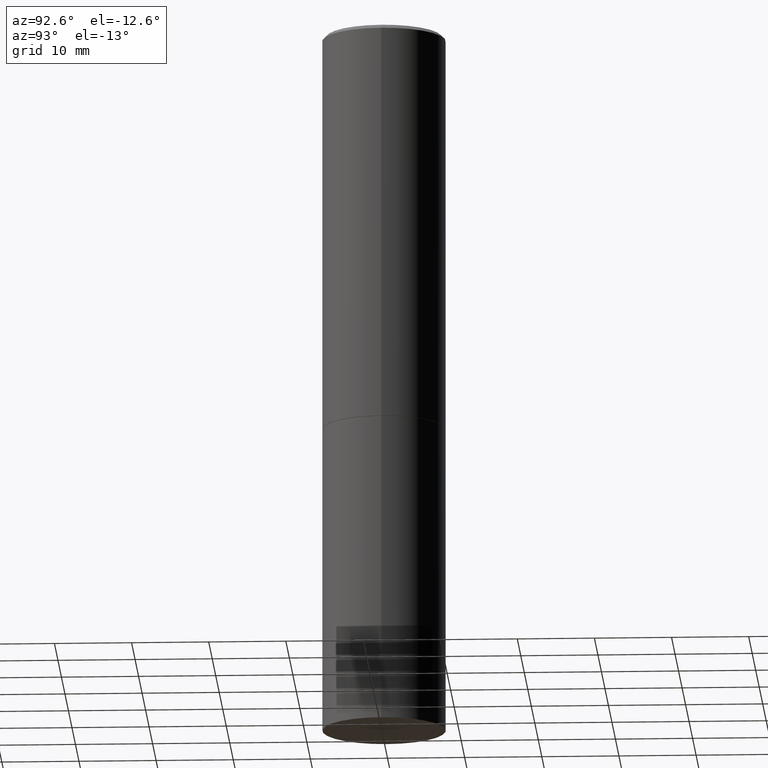
[diagram: clean part render]
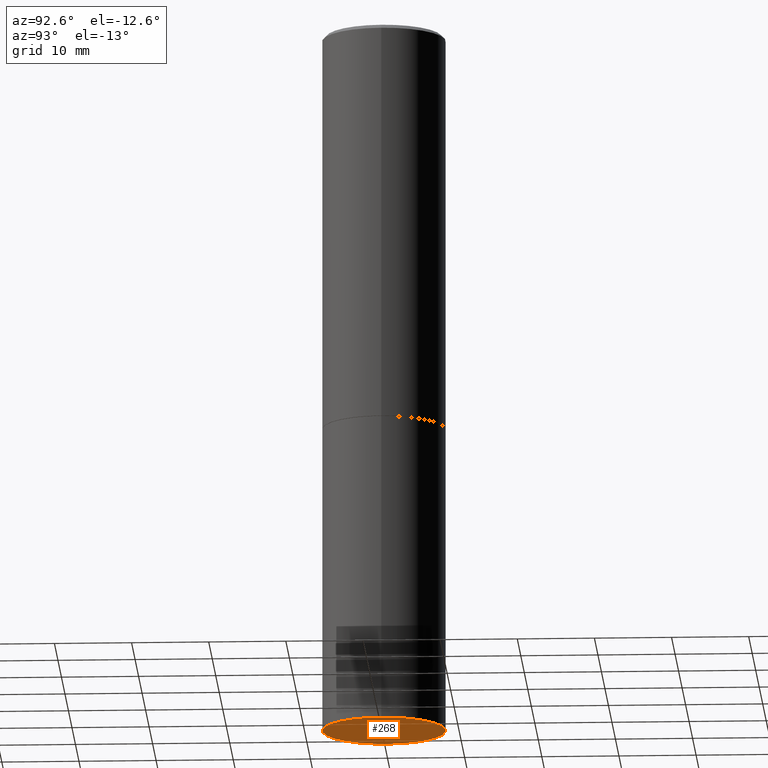
[diagram: same view with one face highlighted and labeled with its STEP entity id]
A machine part, auxiliary view. The second image highlights one B-rep face of the part: STEP entity #268.
In plain terms, the highlighted planar face has unit normal (0, -0, -1).
Its self-contained STEP definition (entity closure, byte-faithful):
#5 = DIRECTION ( 'NONE',  ( -1.000000000000000000, 6.982962677686265922E-15, -4.876176775795935793E-29 ) ) ;
#12 = ORIENTED_EDGE ( 'NONE', *, *, #352, .F. ) ;
#59 = AXIS2_PLACEMENT_3D ( 'NONE', #173, #237, #175 ) ;
#112 = CARTESIAN_POINT ( 'NONE',  ( -0.3149500000000000077, -7.659098656808343322E-15, -3.621999999999999886 ) ) ;
#122 = VERTEX_POINT ( 'NONE', #164 ) ;
#142 = AXIS2_PLACEMENT_3D ( 'NONE', #347, #206, #239 ) ;
#144 = PLANE ( 'NONE',  #322 ) ;
#164 = CARTESIAN_POINT ( 'NONE',  ( 0.3149500000000000077, -1.484542950462716186E-14, -3.621999999999999886 ) ) ;
#173 = CARTESIAN_POINT ( 'NONE',  ( 8.857488016002564476E-29, -1.264614540928987199E-14, -3.621999999999999886 ) ) ;
#175 = DIRECTION ( 'NONE',  ( 1.000000000000000000, -6.982962677686263555E-15, 0.000000000000000000 ) ) ;
#195 = FACE_OUTER_BOUND ( 'NONE', #251, .T. ) ;
#205 = ORIENTED_EDGE ( 'NONE', *, *, #319, .F. ) ;
#206 = DIRECTION ( 'NONE',  ( -2.445468806185136597E-29, 3.491481338843145583E-15, 1.000000000000000000 ) ) ;
#216 = VERTEX_POINT ( 'NONE', #112 ) ;
#217 = CIRCLE ( 'NONE', #59, 0.3149500000000000077 ) ;
#237 = DIRECTION ( 'NONE',  ( -2.445468806185136597E-29, 3.491481338843145583E-15, 1.000000000000000000 ) ) ;
#239 = DIRECTION ( 'NONE',  ( 1.000000000000000000, -6.982962677686263555E-15, 0.000000000000000000 ) ) ;
#251 = EDGE_LOOP ( 'NONE', ( #12, #205 ) ) ;
#256 = DIRECTION ( 'NONE',  ( 2.438088387897960049E-29, -3.491481338843145188E-15, -1.000000000000000000 ) ) ;
#268 = ADVANCED_FACE ( 'NONE', ( #195 ), #144, .T. ) ;
#279 = CARTESIAN_POINT ( 'NONE',  ( 2.199284095337378223E-15, 0.3149499999999873512, -3.622000000000000774 ) ) ;
#319 = EDGE_CURVE ( 'NONE', #216, #122, #337, .T. ) ;
#322 = AXIS2_PLACEMENT_3D ( 'NONE', #279, #256, #5 ) ;
#337 = CIRCLE ( 'NONE', #142, 0.3149500000000000077 ) ;
#347 = CARTESIAN_POINT ( 'NONE',  ( 8.857488016002564476E-29, -1.264614540928987199E-14, -3.621999999999999886 ) ) ;
#352 = EDGE_CURVE ( 'NONE', #122, #216, #217, .T. ) ;